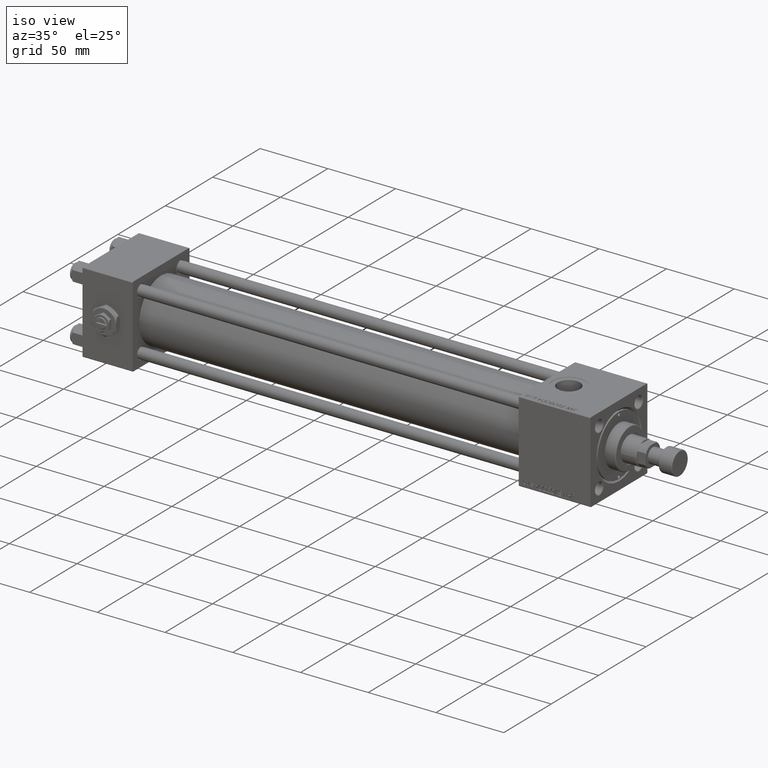
[diagram: clean part render]
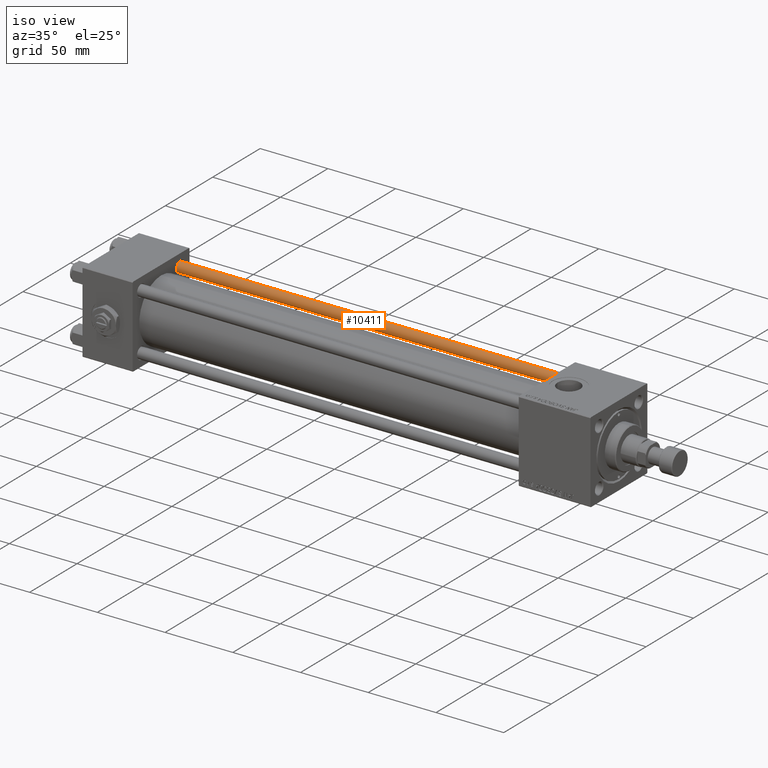
[diagram: same view with one face highlighted and labeled with its STEP entity id]
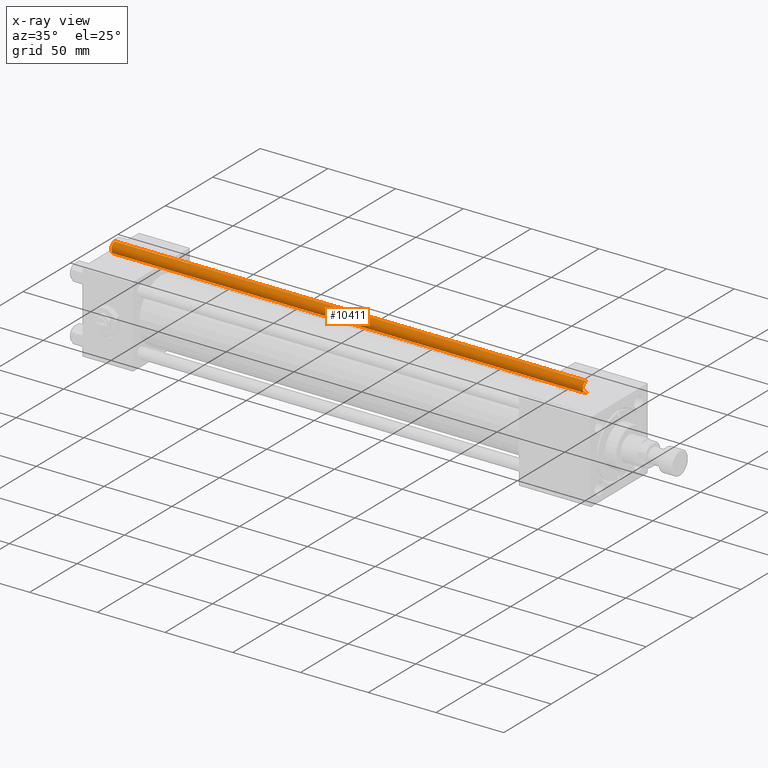
[diagram: x-ray of the same camera — body ghosted, the highlighted face saturated]
A machine part, iso view. The second image highlights one B-rep face of the part: STEP entity #10411.
The next image is the same camera in x-ray: the body ghosted, the highlighted face saturated — about 0% of this face is hidden behind the body in this view.
In plain terms, the highlighted cylindrical surface (edge-blend (fillet) strip) has radius 4 mm, axis along (-1, 0, 0).
Its self-contained STEP definition (entity closure, byte-faithful):
#511 = CYLINDRICAL_SURFACE ( 'NONE', #1893, 4.000000000000000000 ) ;
#1893 = AXIS2_PLACEMENT_3D ( 'NONE', #5304, #13807, #30112 ) ;
#3481 = ORIENTED_EDGE ( 'NONE', *, *, #14345, .F. ) ;
#5304 = CARTESIAN_POINT ( 'NONE',  ( 0.000000000000000000, 0.000000000000000000, 349.0000000000000000 ) ) ;
#6465 = CARTESIAN_POINT ( 'NONE',  ( -4.000000000000000000, 0.000000000000000000, 0.4999999999999449329 ) ) ;
#9444 = CARTESIAN_POINT ( 'NONE',  ( 4.000000000000000000, 4.898587196589412829E-16, 0.4999999999999449329 ) ) ;
#10411 = ADVANCED_FACE ( 'NONE', ( #26108 ), #511, .T. ) ;
#11198 = VERTEX_POINT ( 'NONE', #6465 ) ;
#13807 = DIRECTION ( 'NONE',  ( -0.000000000000000000, -0.000000000000000000, -1.000000000000000000 ) ) ;
#14015 = CARTESIAN_POINT ( 'NONE',  ( 4.000000000000000000, 4.898587196589412829E-16, 348.4999999999999432 ) ) ;
#14345 = EDGE_CURVE ( 'NONE', #50825, #51095, #27407, .T. ) ;
#17700 = AXIS2_PLACEMENT_3D ( 'NONE', #33012, #49305, #33268 ) ;
#18743 = CARTESIAN_POINT ( 'NONE',  ( 0.000000000000000000, 0.000000000000000000, 0.4999999999999449329 ) ) ;
#19191 = AXIS2_PLACEMENT_3D ( 'NONE', #18743, #31554, #39046 ) ;
#21092 = CARTESIAN_POINT ( 'NONE',  ( -4.000000000000000000, 0.000000000000000000, 349.0000000000000000 ) ) ;
#21717 = EDGE_CURVE ( 'NONE', #11198, #51095, #30265, .T. ) ;
#26108 = FACE_OUTER_BOUND ( 'NONE', #50304, .T. ) ;
#27407 = LINE ( 'NONE', #34888, #52158 ) ;
#30112 = DIRECTION ( 'NONE',  ( -1.000000000000000000, 0.000000000000000000, 0.000000000000000000 ) ) ;
#30265 = CIRCLE ( 'NONE', #19191, 4.000000000000000000 ) ;
#31554 = DIRECTION ( 'NONE',  ( -0.000000000000000000, -0.000000000000000000, 1.000000000000000000 ) ) ;
#32581 = DIRECTION ( 'NONE',  ( -0.000000000000000000, -0.000000000000000000, -1.000000000000000000 ) ) ;
#32765 = CARTESIAN_POINT ( 'NONE',  ( -4.000000000000000000, 0.000000000000000000, 348.4999999999999432 ) ) ;
#32847 = LINE ( 'NONE', #21092, #38340 ) ;
#33012 = CARTESIAN_POINT ( 'NONE',  ( 0.000000000000000000, 0.000000000000000000, 348.4999999999999432 ) ) ;
#33268 = DIRECTION ( 'NONE',  ( 1.000000000000000000, 0.000000000000000000, 0.000000000000000000 ) ) ;
#34888 = CARTESIAN_POINT ( 'NONE',  ( 4.000000000000000000, 4.898587196589412829E-16, 349.0000000000000000 ) ) ;
#35526 = EDGE_CURVE ( 'NONE', #39867, #11198, #32847, .T. ) ;
#35591 = ORIENTED_EDGE ( 'NONE', *, *, #21717, .T. ) ;
#38340 = VECTOR ( 'NONE', #32581, 1000.000000000000000 ) ;
#39046 = DIRECTION ( 'NONE',  ( 1.000000000000000000, 0.000000000000000000, 0.000000000000000000 ) ) ;
#39867 = VERTEX_POINT ( 'NONE', #32765 ) ;
#42514 = CIRCLE ( 'NONE', #17700, 4.000000000000000000 ) ;
#42888 = DIRECTION ( 'NONE',  ( -0.000000000000000000, -0.000000000000000000, -1.000000000000000000 ) ) ;
#42919 = EDGE_CURVE ( 'NONE', #50825, #39867, #42514, .T. ) ;
#45160 = ORIENTED_EDGE ( 'NONE', *, *, #35526, .T. ) ;
#46744 = ORIENTED_EDGE ( 'NONE', *, *, #42919, .T. ) ;
#49305 = DIRECTION ( 'NONE',  ( 0.000000000000000000, 0.000000000000000000, -1.000000000000000000 ) ) ;
#50304 = EDGE_LOOP ( 'NONE', ( #3481, #46744, #45160, #35591 ) ) ;
#50825 = VERTEX_POINT ( 'NONE', #14015 ) ;
#51095 = VERTEX_POINT ( 'NONE', #9444 ) ;
#52158 = VECTOR ( 'NONE', #42888, 1000.000000000000000 ) ;